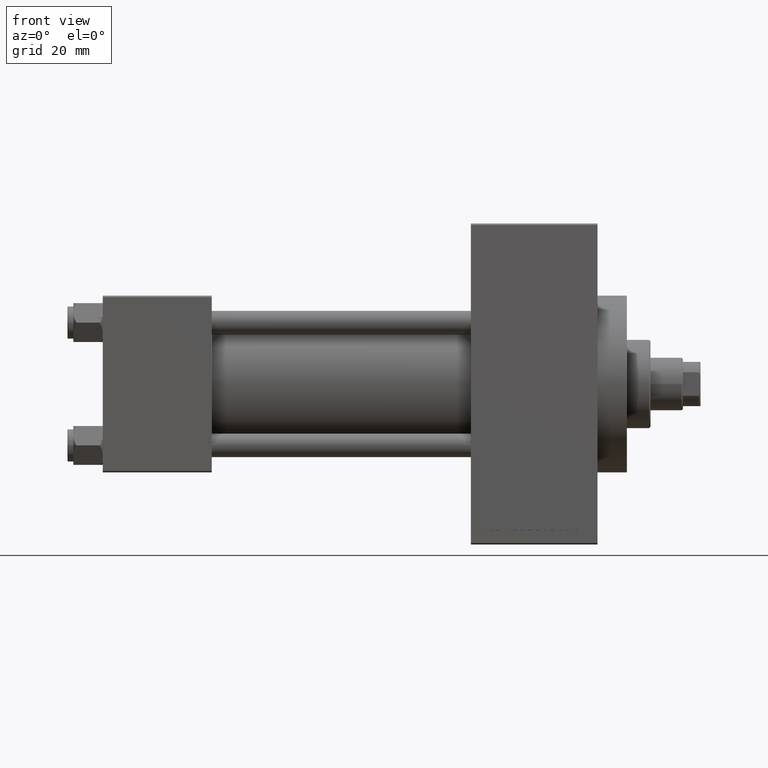
[diagram: clean part render]
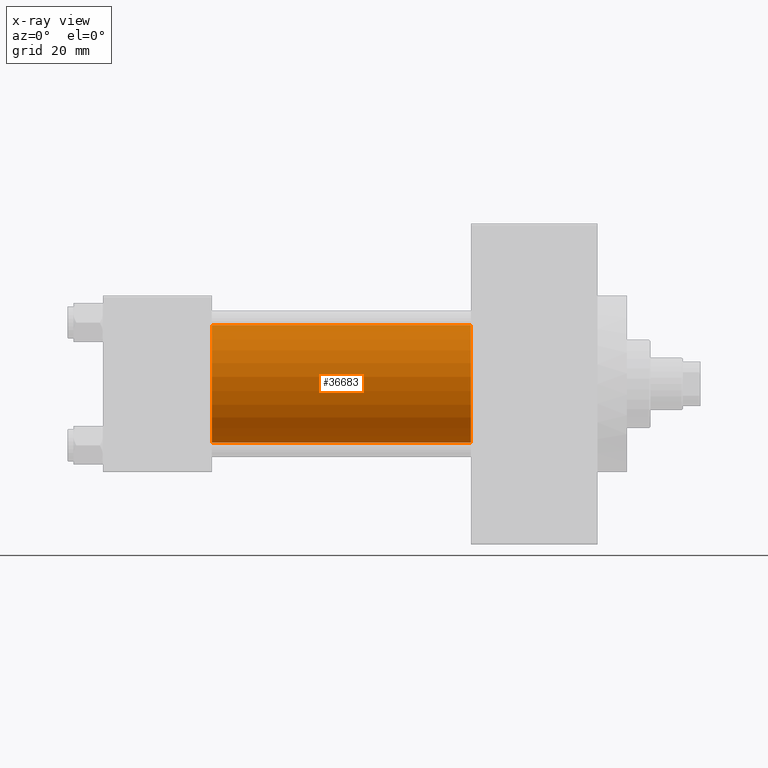
[diagram: x-ray — body ghosted, one internal face saturated and labeled with its STEP entity id]
A machine part, front view, then the same camera in x-ray: the body is ghosted and one INTERNAL B-rep face — a face not visible from any outside direction — is saturated and labeled: STEP entity #36683.
In plain terms, the highlighted cylindrical surface (partial cylindrical patch) has radius 20 mm, axis along (-1, -0, -0).
Its self-contained STEP definition (entity closure, byte-faithful):
#696 = DIRECTION ( 'NONE',  ( 1.000000000000000000, 0.000000000000000000, 0.000000000000000000 ) ) ;
#1882 = CIRCLE ( 'NONE', #22530, 20.00000000000000000 ) ;
#1897 = CARTESIAN_POINT ( 'NONE',  ( 37.00000000000000000, -2.602085213965210642E-15, 20.00000000000000000 ) ) ;
#2088 = EDGE_CURVE ( 'NONE', #23194, #45147, #43968, .T. ) ;
#3108 = DIRECTION ( 'NONE',  ( -1.000000000000000000, -0.000000000000000000, -0.000000000000000000 ) ) ;
#4958 = EDGE_CURVE ( 'NONE', #23194, #43941, #1882, .T. ) ;
#5028 = CARTESIAN_POINT ( 'NONE',  ( 125.0000000000000000, -2.602085213965210642E-15, 0.000000000000000000 ) ) ;
#5269 = DIRECTION ( 'NONE',  ( 1.000000000000000000, 0.000000000000000000, 0.000000000000000000 ) ) ;
#7006 = DIRECTION ( 'NONE',  ( -1.000000000000000000, -0.000000000000000000, -0.000000000000000000 ) ) ;
#7876 = CARTESIAN_POINT ( 'NONE',  ( 37.00000000000000000, -2.602085213965210642E-15, 0.000000000000000000 ) ) ;
#8600 = AXIS2_PLACEMENT_3D ( 'NONE', #17954, #3108, #17717 ) ;
#10582 = CARTESIAN_POINT ( 'NONE',  ( 125.0000000000000000, -2.602085213965210642E-15, 20.00000000000000000 ) ) ;
#16224 = EDGE_CURVE ( 'NONE', #43941, #43928, #18031, .T. ) ;
#16799 = EDGE_CURVE ( 'NONE', #45147, #43928, #16841, .T. ) ;
#16841 = CIRCLE ( 'NONE', #32155, 20.00000000000000000 ) ;
#17717 = DIRECTION ( 'NONE',  ( 0.000000000000000000, 0.000000000000000000, 1.000000000000000000 ) ) ;
#17939 = ORIENTED_EDGE ( 'NONE', *, *, #4958, .T. ) ;
#17954 = CARTESIAN_POINT ( 'NONE',  ( 125.0000000000000000, -2.602085213965210642E-15, 0.000000000000000000 ) ) ;
#18031 = LINE ( 'NONE', #43723, #32777 ) ;
#18588 = ORIENTED_EDGE ( 'NONE', *, *, #16799, .F. ) ;
#19896 = DIRECTION ( 'NONE',  ( 0.000000000000000000, 0.000000000000000000, -1.000000000000000000 ) ) ;
#21325 = FACE_OUTER_BOUND ( 'NONE', #33921, .T. ) ;
#22530 = AXIS2_PLACEMENT_3D ( 'NONE', #5028, #5269, #19896 ) ;
#23088 = CARTESIAN_POINT ( 'NONE',  ( 125.0000000000000000, -1.527916156705042519E-16, -20.00000000000000000 ) ) ;
#23194 = VERTEX_POINT ( 'NONE', #10582 ) ;
#23214 = DIRECTION ( 'NONE',  ( 0.000000000000000000, 0.000000000000000000, -1.000000000000000000 ) ) ;
#25127 = ORIENTED_EDGE ( 'NONE', *, *, #2088, .F. ) ;
#25231 = CARTESIAN_POINT ( 'NONE',  ( 125.0000000000000000, -2.602085213965210642E-15, 20.00000000000000000 ) ) ;
#27429 = CARTESIAN_POINT ( 'NONE',  ( 37.00000000000000000, -1.527916156705042519E-16, -20.00000000000000000 ) ) ;
#31298 = ORIENTED_EDGE ( 'NONE', *, *, #16224, .T. ) ;
#32155 = AXIS2_PLACEMENT_3D ( 'NONE', #7876, #696, #23214 ) ;
#32777 = VECTOR ( 'NONE', #33140, 1000.000000000000000 ) ;
#33140 = DIRECTION ( 'NONE',  ( -1.000000000000000000, -0.000000000000000000, -0.000000000000000000 ) ) ;
#33921 = EDGE_LOOP ( 'NONE', ( #17939, #31298, #18588, #25127 ) ) ;
#35984 = CYLINDRICAL_SURFACE ( 'NONE', #8600, 20.00000000000000000 ) ;
#36683 = ADVANCED_FACE ( 'NONE', ( #21325 ), #35984, .F. ) ;
#41647 = VECTOR ( 'NONE', #7006, 1000.000000000000000 ) ;
#43723 = CARTESIAN_POINT ( 'NONE',  ( 125.0000000000000000, -1.527916156705042519E-16, -20.00000000000000000 ) ) ;
#43928 = VERTEX_POINT ( 'NONE', #27429 ) ;
#43941 = VERTEX_POINT ( 'NONE', #23088 ) ;
#43968 = LINE ( 'NONE', #25231, #41647 ) ;
#45147 = VERTEX_POINT ( 'NONE', #1897 ) ;